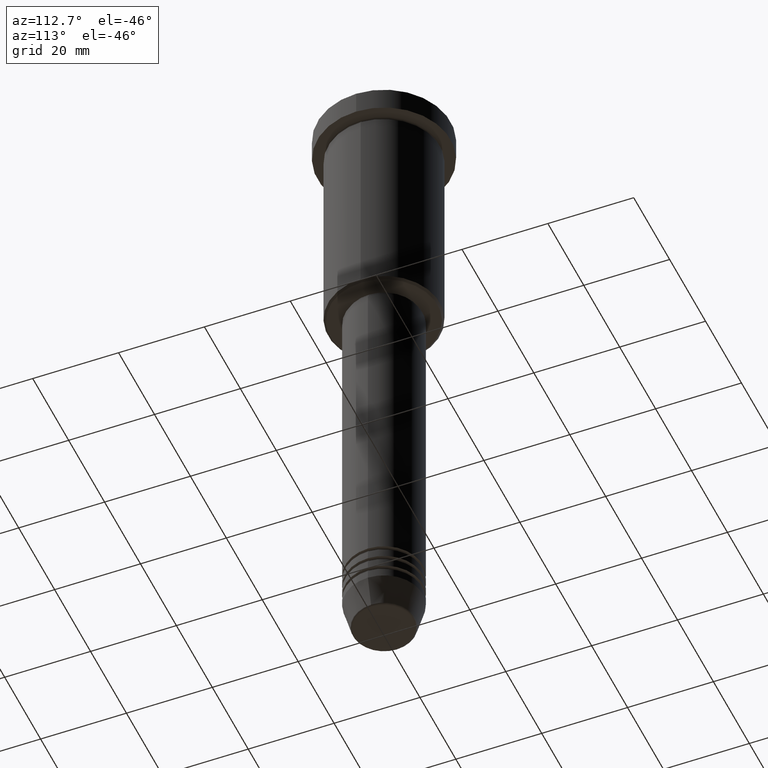
[diagram: clean part render]
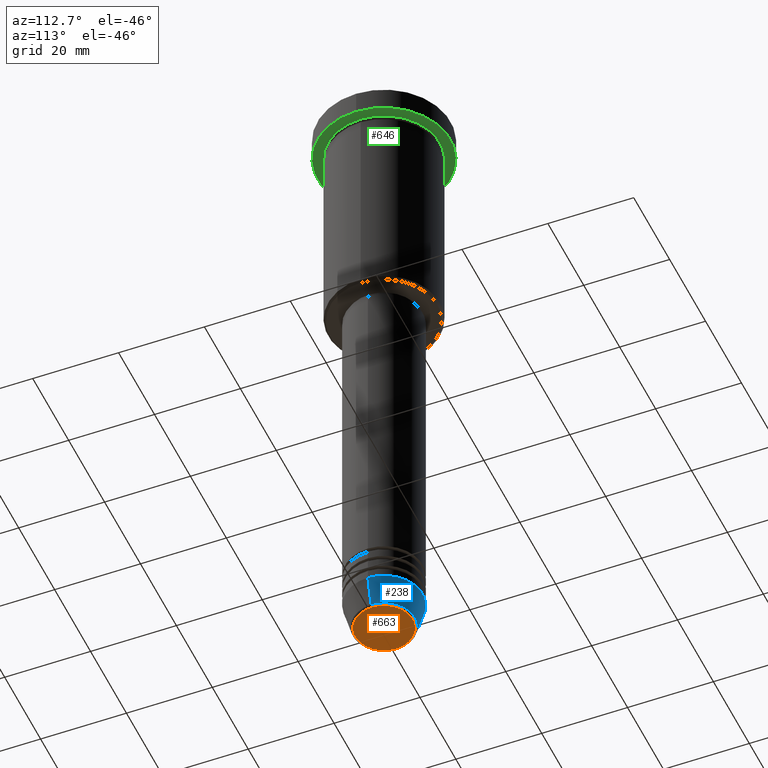
[diagram: same view with three faces highlighted in distinct colors, each labeled with its STEP entity id]
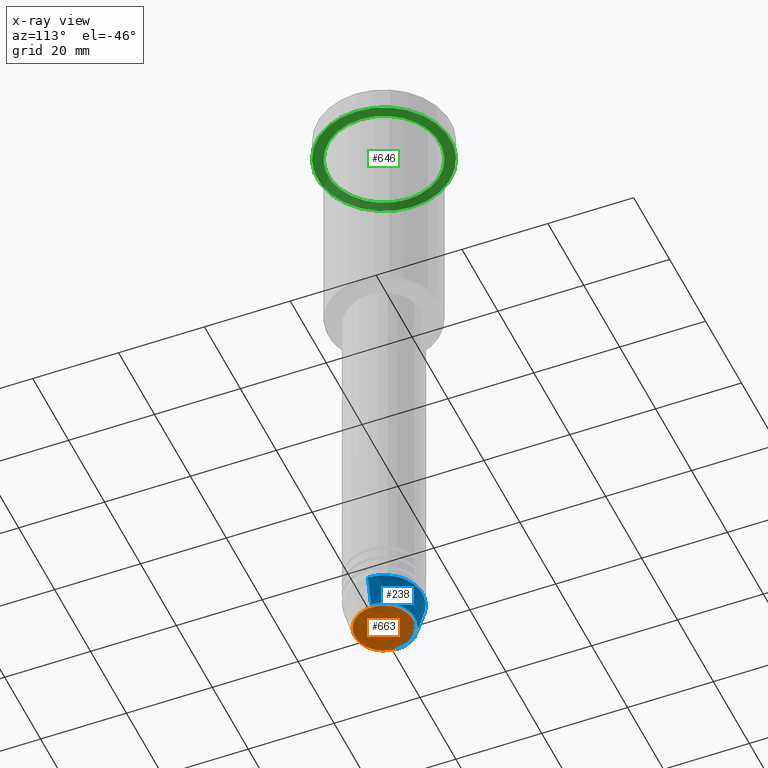
[diagram: x-ray of the same camera — body ghosted, the three highlighted faces saturated]
A machine part, auxiliary view with three faces highlighted in distinct colors.
The next image is the same camera in x-ray (body ghosted, the three faces saturated) — at least one of them is partly hidden behind the body in this view.
Their STEP definitions:

[orange] entity #663 — the highlighted planar face has unit normal (0, -0, 1).
#69 = CARTESIAN_POINT ( 'NONE',  ( 0.000000000000000000, 0.000000000000000000, -151.0000000000000284 ) ) ;
#75 = DIRECTION ( 'NONE',  ( 0.000000000000000000, -0.000000000000000000, 1.000000000000000000 ) ) ;
#79 = ORIENTED_EDGE ( 'NONE', *, *, #633, .T. ) ;
#171 = CARTESIAN_POINT ( 'NONE',  ( 0.000000000000000000, 0.000000000000000000, -151.0000000000000284 ) ) ;
#192 = VERTEX_POINT ( 'NONE', #233 ) ;
#233 = CARTESIAN_POINT ( 'NONE',  ( 6.740692158992658278, 0.000000000000000000, -151.0000000000000284 ) ) ;
#362 = DIRECTION ( 'NONE',  ( 1.000000000000000000, 0.000000000000000000, 0.000000000000000000 ) ) ;
#396 = CARTESIAN_POINT ( 'NONE',  ( 0.000000000000000000, 0.000000000000000000, -151.0000000000000284 ) ) ;
#408 = EDGE_LOOP ( 'NONE', ( #925, #79 ) ) ;
#444 = AXIS2_PLACEMENT_3D ( 'NONE', #396, #496, #1014 ) ;
#459 = CARTESIAN_POINT ( 'NONE',  ( -6.740692158992658278, 8.550696569392685681E-16, -151.0000000000000284 ) ) ;
#496 = DIRECTION ( 'NONE',  ( 0.000000000000000000, 0.000000000000000000, -1.000000000000000000 ) ) ;
#633 = EDGE_CURVE ( 'NONE', #881, #192, #950, .T. ) ;
#663 = ADVANCED_FACE ( 'NONE', ( #855 ), #1152, .F. ) ;
#855 = FACE_OUTER_BOUND ( 'NONE', #408, .T. ) ;
#881 = VERTEX_POINT ( 'NONE', #459 ) ;
#901 = EDGE_CURVE ( 'NONE', #192, #881, #988, .T. ) ;
#902 = DIRECTION ( 'NONE',  ( 0.000000000000000000, 0.000000000000000000, -1.000000000000000000 ) ) ;
#912 = AXIS2_PLACEMENT_3D ( 'NONE', #171, #902, #362 ) ;
#925 = ORIENTED_EDGE ( 'NONE', *, *, #901, .T. ) ;
#950 = CIRCLE ( 'NONE', #444, 6.740692158992658278 ) ;
#988 = CIRCLE ( 'NONE', #912, 6.740692158992658278 ) ;
#1014 = DIRECTION ( 'NONE',  ( 1.000000000000000000, 0.000000000000000000, 0.000000000000000000 ) ) ;
#1127 = AXIS2_PLACEMENT_3D ( 'NONE', #69, #75, #1138 ) ;
#1138 = DIRECTION ( 'NONE',  ( 1.000000000000000000, 0.000000000000000000, 0.000000000000000000 ) ) ;
#1152 = PLANE ( 'NONE',  #1127 ) ;

[blue] entity #238 — the highlighted conical surface has half-angle 15 deg.
#11 = AXIS2_PLACEMENT_3D ( 'NONE', #671, #1030, #257 ) ;
#16 = CARTESIAN_POINT ( 'NONE',  ( -9.000000000000000000, 1.102182119232617714E-15, -144.0000000000000284 ) ) ;
#50 = VERTEX_POINT ( 'NONE', #456 ) ;
#62 = CARTESIAN_POINT ( 'NONE',  ( -7.223655072137189492, 9.934123627281765110E-16, -150.6294095225512990 ) ) ;
#71 = DIRECTION ( 'NONE',  ( 1.000000000000000000, 0.000000000000000000, 0.000000000000000000 ) ) ;
#85 = CIRCLE ( 'NONE', #11, 7.223655072137188604 ) ;
#110 = CARTESIAN_POINT ( 'NONE',  ( 9.000000000000000000, 0.000000000000000000, -144.0000000000000284 ) ) ;
#160 = AXIS2_PLACEMENT_3D ( 'NONE', #1074, #1069, #982 ) ;
#193 = LINE ( 'NONE', #261, #332 ) ;
#238 = ADVANCED_FACE ( 'NONE', ( #956 ), #1146, .T. ) ;
#257 = DIRECTION ( 'NONE',  ( 1.000000000000000000, 0.000000000000000000, 0.000000000000000000 ) ) ;
#261 = CARTESIAN_POINT ( 'NONE',  ( 9.000000000000000000, 0.000000000000000000, -144.0000000000000284 ) ) ;
#308 = CIRCLE ( 'NONE', #160, 9.000000000000000000 ) ;
#332 = VECTOR ( 'NONE', #438, 1000.000000000000000 ) ;
#342 = ORIENTED_EDGE ( 'NONE', *, *, #794, .F. ) ;
#383 = ORIENTED_EDGE ( 'NONE', *, *, #1090, .T. ) ;
#438 = DIRECTION ( 'NONE',  ( 0.2588190451025213501, 0.000000000000000000, 0.9659258262890680902 ) ) ;
#456 = CARTESIAN_POINT ( 'NONE',  ( 7.223655072137188604, 0.000000000000000000, -150.6294095225512990 ) ) ;
#487 = VERTEX_POINT ( 'NONE', #110 ) ;
#579 = CARTESIAN_POINT ( 'NONE',  ( -9.000000000000000000, 1.102182119232617714E-15, -144.0000000000000284 ) ) ;
#580 = ORIENTED_EDGE ( 'NONE', *, *, #841, .F. ) ;
#645 = VERTEX_POINT ( 'NONE', #62 ) ;
#671 = CARTESIAN_POINT ( 'NONE',  ( 0.000000000000000000, 0.000000000000000000, -150.6294095225512990 ) ) ;
#691 = VECTOR ( 'NONE', #1040, 1000.000000000000000 ) ;
#746 = EDGE_LOOP ( 'NONE', ( #383, #903, #342, #580 ) ) ;
#794 = EDGE_CURVE ( 'NONE', #487, #1076, #308, .T. ) ;
#841 = EDGE_CURVE ( 'NONE', #50, #487, #193, .T. ) ;
#845 = LINE ( 'NONE', #16, #691 ) ;
#903 = ORIENTED_EDGE ( 'NONE', *, *, #1053, .T. ) ;
#956 = FACE_OUTER_BOUND ( 'NONE', #746, .T. ) ;
#966 = CARTESIAN_POINT ( 'NONE',  ( 0.000000000000000000, 0.000000000000000000, -144.0000000000000284 ) ) ;
#982 = DIRECTION ( 'NONE',  ( 1.000000000000000000, 0.000000000000000000, 0.000000000000000000 ) ) ;
#1030 = DIRECTION ( 'NONE',  ( -0.000000000000000000, -0.000000000000000000, 1.000000000000000000 ) ) ;
#1040 = DIRECTION ( 'NONE',  ( -0.2588190451025213501, 3.169619151431772337E-17, 0.9659258262890680902 ) ) ;
#1053 = EDGE_CURVE ( 'NONE', #645, #1076, #845, .T. ) ;
#1069 = DIRECTION ( 'NONE',  ( -0.000000000000000000, -0.000000000000000000, 1.000000000000000000 ) ) ;
#1074 = CARTESIAN_POINT ( 'NONE',  ( 0.000000000000000000, 0.000000000000000000, -144.0000000000000284 ) ) ;
#1076 = VERTEX_POINT ( 'NONE', #579 ) ;
#1090 = EDGE_CURVE ( 'NONE', #50, #645, #85, .T. ) ;
#1124 = AXIS2_PLACEMENT_3D ( 'NONE', #966, #1154, #71 ) ;
#1146 = CONICAL_SURFACE ( 'NONE', #1124, 9.000000000000000000, 0.2617993877991500740 ) ;
#1154 = DIRECTION ( 'NONE',  ( -0.000000000000000000, -0.000000000000000000, 1.000000000000000000 ) ) ;

[green] entity #646 — the highlighted planar face has unit normal (0, 0, -1).
#24 = CIRCLE ( 'NONE', #907, 15.50000000000000000 ) ;
#66 = AXIS2_PLACEMENT_3D ( 'NONE', #247, #429, #337 ) ;
#74 = ORIENTED_EDGE ( 'NONE', *, *, #1000, .F. ) ;
#106 = AXIS2_PLACEMENT_3D ( 'NONE', #324, #768, #512 ) ;
#107 = CARTESIAN_POINT ( 'NONE',  ( 0.000000000000000000, 0.000000000000000000, -5.999999999999995559 ) ) ;
#134 = VERTEX_POINT ( 'NONE', #1020 ) ;
#203 = CIRCLE ( 'NONE', #106, 13.00000000000000000 ) ;
#225 = CARTESIAN_POINT ( 'NONE',  ( -13.00000000000000000, 0.000000000000000000, -5.999999999999994671 ) ) ;
#231 = EDGE_CURVE ( 'NONE', #134, #431, #24, .T. ) ;
#247 = CARTESIAN_POINT ( 'NONE',  ( 0.000000000000000000, 15.50000000000000000, -5.999999999999995559 ) ) ;
#324 = CARTESIAN_POINT ( 'NONE',  ( 0.000000000000000000, 0.000000000000000000, -5.999999999999995559 ) ) ;
#331 = CARTESIAN_POINT ( 'NONE',  ( 13.00000000000000000, 1.592040838891559095E-15, -5.999999999999994671 ) ) ;
#337 = DIRECTION ( 'NONE',  ( -1.000000000000000000, 0.000000000000000000, -0.000000000000000000 ) ) ;
#429 = DIRECTION ( 'NONE',  ( 0.000000000000000000, 0.000000000000000000, -1.000000000000000000 ) ) ;
#431 = VERTEX_POINT ( 'NONE', #538 ) ;
#461 = ORIENTED_EDGE ( 'NONE', *, *, #752, .T. ) ;
#503 = PLANE ( 'NONE',  #66 ) ;
#512 = DIRECTION ( 'NONE',  ( -1.000000000000000000, 0.000000000000000000, 0.000000000000000000 ) ) ;
#538 = CARTESIAN_POINT ( 'NONE',  ( 15.50000000000000000, 0.000000000000000000, -5.999999999999995559 ) ) ;
#563 = ORIENTED_EDGE ( 'NONE', *, *, #668, .T. ) ;
#586 = DIRECTION ( 'NONE',  ( -0.000000000000000000, -0.000000000000000000, 1.000000000000000000 ) ) ;
#603 = DIRECTION ( 'NONE',  ( -1.000000000000000000, 0.000000000000000000, 0.000000000000000000 ) ) ;
#614 = EDGE_LOOP ( 'NONE', ( #461, #563 ) ) ;
#646 = ADVANCED_FACE ( 'NONE', ( #1157, #862 ), #503, .T. ) ;
#668 = EDGE_CURVE ( 'NONE', #788, #1036, #756, .T. ) ;
#694 = CARTESIAN_POINT ( 'NONE',  ( 0.000000000000000000, 0.000000000000000000, -5.999999999999995559 ) ) ;
#696 = CARTESIAN_POINT ( 'NONE',  ( 0.000000000000000000, 0.000000000000000000, -5.999999999999995559 ) ) ;
#697 = EDGE_LOOP ( 'NONE', ( #74, #993 ) ) ;
#708 = DIRECTION ( 'NONE',  ( -0.000000000000000000, -0.000000000000000000, 1.000000000000000000 ) ) ;
#752 = EDGE_CURVE ( 'NONE', #1036, #788, #203, .T. ) ;
#756 = CIRCLE ( 'NONE', #914, 13.00000000000000000 ) ;
#764 = DIRECTION ( 'NONE',  ( 1.000000000000000000, 0.000000000000000000, 0.000000000000000000 ) ) ;
#768 = DIRECTION ( 'NONE',  ( -0.000000000000000000, -0.000000000000000000, 1.000000000000000000 ) ) ;
#781 = DIRECTION ( 'NONE',  ( 1.000000000000000000, 0.000000000000000000, 0.000000000000000000 ) ) ;
#788 = VERTEX_POINT ( 'NONE', #331 ) ;
#862 = FACE_OUTER_BOUND ( 'NONE', #697, .T. ) ;
#907 = AXIS2_PLACEMENT_3D ( 'NONE', #694, #708, #781 ) ;
#914 = AXIS2_PLACEMENT_3D ( 'NONE', #696, #586, #603 ) ;
#972 = CIRCLE ( 'NONE', #1172, 15.50000000000000000 ) ;
#993 = ORIENTED_EDGE ( 'NONE', *, *, #231, .F. ) ;
#1000 = EDGE_CURVE ( 'NONE', #431, #134, #972, .T. ) ;
#1008 = DIRECTION ( 'NONE',  ( -0.000000000000000000, -0.000000000000000000, 1.000000000000000000 ) ) ;
#1020 = CARTESIAN_POINT ( 'NONE',  ( -15.50000000000000000, 1.898202538678397557E-15, -5.999999999999995559 ) ) ;
#1036 = VERTEX_POINT ( 'NONE', #225 ) ;
#1157 = FACE_BOUND ( 'NONE', #614, .T. ) ;
#1172 = AXIS2_PLACEMENT_3D ( 'NONE', #107, #1008, #764 ) ;